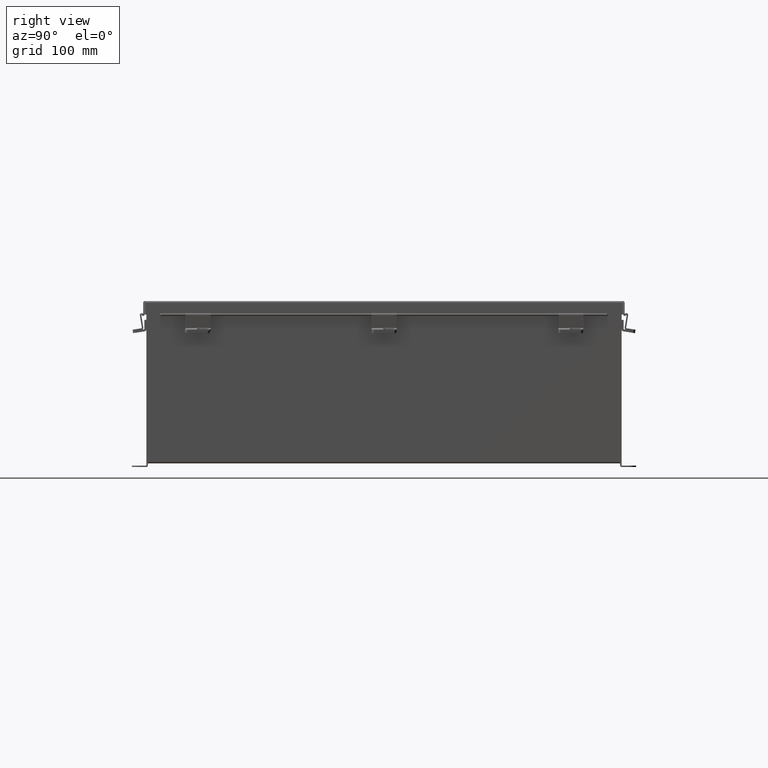
[diagram: clean part render]
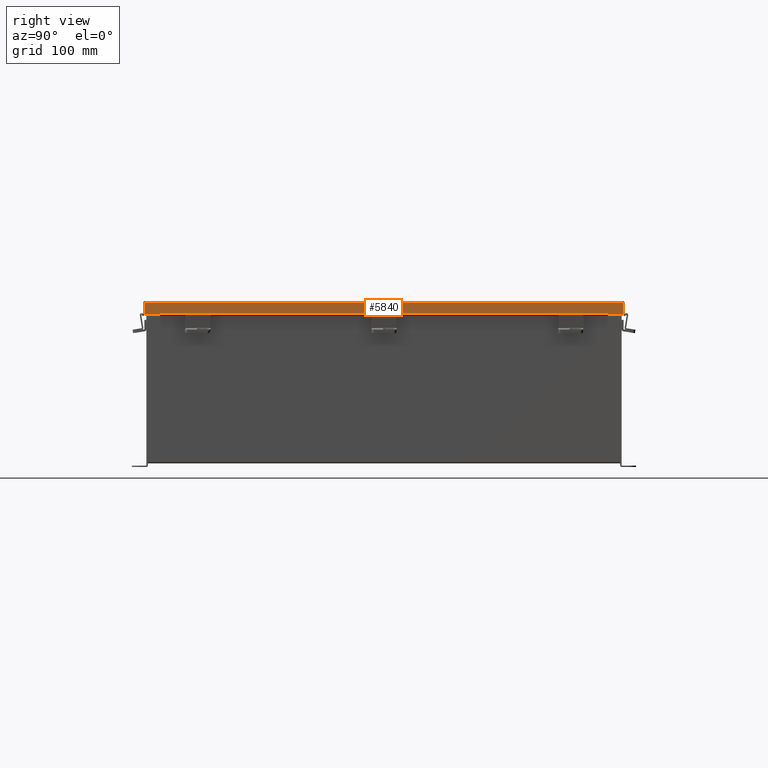
[diagram: same view with one face highlighted and labeled with its STEP entity id]
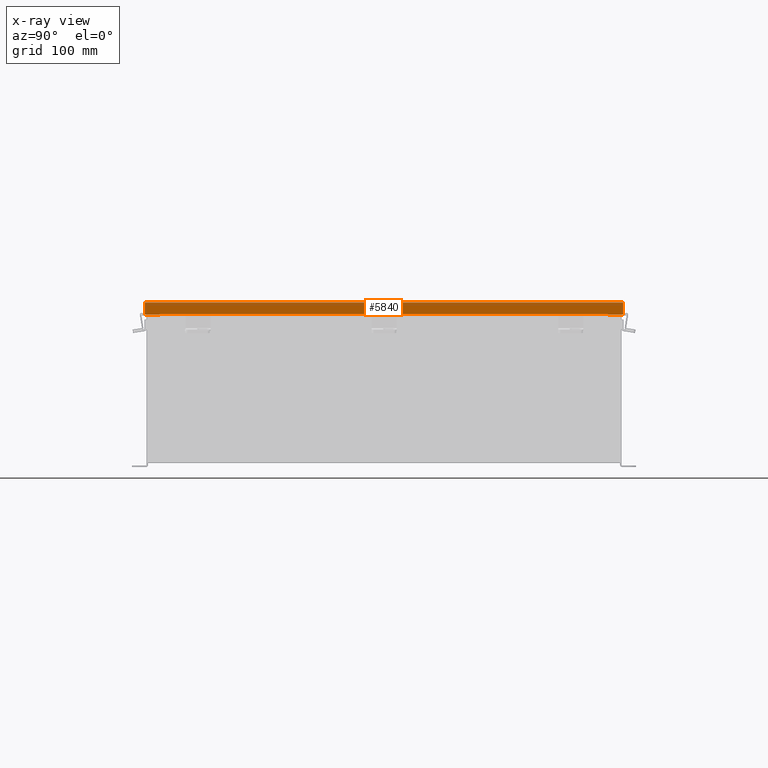
[diagram: x-ray of the same camera — body ghosted, the highlighted face saturated]
A machine part, right view. The second image highlights one B-rep face of the part: STEP entity #5840.
The next image is the same camera in x-ray: the body ghosted, the highlighted face saturated — about 0% of this face is hidden behind the body in this view.
In plain terms, the highlighted planar face has unit normal (-1, 0, -0).
Its self-contained STEP definition (entity closure, byte-faithful):
#46 = VECTOR ( 'NONE', #6319, 39.37007874015748100 ) ;
#151 = VERTEX_POINT ( 'NONE', #6353 ) ;
#294 = EDGE_CURVE ( 'NONE', #5400, #8834, #3645, .T. ) ;
#301 = LINE ( 'NONE', #1837, #46 ) ;
#397 = LINE ( 'NONE', #3883, #8557 ) ;
#731 = VECTOR ( 'NONE', #9449, 39.37007874015748100 ) ;
#835 = DIRECTION ( 'NONE',  ( 1.000000000000000000, 3.392644796219358600E-030, 3.569293475308537100E-015 ) ) ;
#966 = EDGE_CURVE ( 'NONE', #151, #7665, #397, .T. ) ;
#1053 = CARTESIAN_POINT ( 'NONE',  ( -12.15625000000003400, -12.07447893218813600, 0.6123000000000005100 ) ) ;
#1083 = EDGE_CURVE ( 'NONE', #8524, #1485, #4486, .T. ) ;
#1485 = VERTEX_POINT ( 'NONE', #5367 ) ;
#1837 = CARTESIAN_POINT ( 'NONE',  ( -12.15625000000003400, 11.32447893218813200, 0.6123000000000015100 ) ) ;
#1878 = EDGE_CURVE ( 'NONE', #8524, #9326, #2304, .T. ) ;
#1896 = CARTESIAN_POINT ( 'NONE',  ( -12.15625000000003000, -11.32447893218812100, 0.5967115427318782100 ) ) ;
#1908 = CARTESIAN_POINT ( 'NONE',  ( -12.15625000000003400, -11.32447893218813600, 0.6123000000000005100 ) ) ;
#2201 = ORIENTED_EDGE ( 'NONE', *, *, #3142, .F. ) ;
#2304 = LINE ( 'NONE', #9423, #6929 ) ;
#2435 = DIRECTION ( 'NONE',  ( 3.166671605124525800E-030, 1.000000000000000000, 1.853823127269377700E-029 ) ) ;
#2795 = FACE_OUTER_BOUND ( 'NONE', #4676, .T. ) ;
#3142 = EDGE_CURVE ( 'NONE', #8834, #4068, #6904, .T. ) ;
#3619 = CARTESIAN_POINT ( 'NONE',  ( -12.15625000000003000, 12.15624999999999800, 0.01300000000000010700 ) ) ;
#3645 = LINE ( 'NONE', #7457, #5731 ) ;
#3883 = CARTESIAN_POINT ( 'NONE',  ( -12.15625000000003200, -4.268512490100411300E-018, 0.6122999999999994000 ) ) ;
#4068 = VERTEX_POINT ( 'NONE', #1908 ) ;
#4331 = CARTESIAN_POINT ( 'NONE',  ( -12.15625000000003200, 0.0000000000000000000, -4.370956789862821100E-014 ) ) ;
#4486 = LINE ( 'NONE', #3619, #4494 ) ;
#4488 = CARTESIAN_POINT ( 'NONE',  ( -12.15625000000003400, -11.32447893218812100, 0.5967115427318782100 ) ) ;
#4494 = VECTOR ( 'NONE', #4645, 39.37007874015748100 ) ;
#4504 = CARTESIAN_POINT ( 'NONE',  ( -12.15625000000003000, -12.07447893218813600, 0.01300000000000010700 ) ) ;
#4645 = DIRECTION ( 'NONE',  ( 3.166671605124525800E-030, 1.000000000000000000, 1.853823127269377700E-029 ) ) ;
#4676 = EDGE_LOOP ( 'NONE', ( #9530, #8916, #8330, #7181, #6367, #8877, #2201, #9557 ) ) ;
#4692 = EDGE_CURVE ( 'NONE', #151, #5400, #301, .T. ) ;
#4775 = DIRECTION ( 'NONE',  ( -3.166671605124527300E-030, -1.000000000000000000, -1.853823127269378000E-029 ) ) ;
#5051 = EDGE_CURVE ( 'NONE', #9326, #4068, #9408, .T. ) ;
#5349 = VECTOR ( 'NONE', #2435, 39.37007874015748100 ) ;
#5367 = CARTESIAN_POINT ( 'NONE',  ( -12.15625000000003000, 12.07447893218813200, 0.01300000000000010700 ) ) ;
#5373 = LINE ( 'NONE', #6182, #7196 ) ;
#5400 = VERTEX_POINT ( 'NONE', #6384 ) ;
#5731 = VECTOR ( 'NONE', #4775, 39.37007874015748100 ) ;
#5840 = ADVANCED_FACE ( 'NONE', ( #2795 ), #6045, .F. ) ;
#6001 = DIRECTION ( 'NONE',  ( 3.569293475308537100E-015, -1.846427556282924000E-029, -1.000000000000000000 ) ) ;
#6045 = PLANE ( 'NONE',  #7693 ) ;
#6182 = CARTESIAN_POINT ( 'NONE',  ( -12.15625000000003000, 12.07447893218813200, 0.0000000000000000000 ) ) ;
#6319 = DIRECTION ( 'NONE',  ( 4.205955132072044700E-013, 1.401985044024007700E-013, -1.000000000000000000 ) ) ;
#6353 = CARTESIAN_POINT ( 'NONE',  ( -12.15625000000003400, 11.32447893218813200, 0.6123000000000015100 ) ) ;
#6367 = ORIENTED_EDGE ( 'NONE', *, *, #1878, .T. ) ;
#6384 = CARTESIAN_POINT ( 'NONE',  ( -12.15625000000003400, 11.32447893218813400, 0.5967115427318793200 ) ) ;
#6897 = DIRECTION ( 'NONE',  ( -3.569293475308537100E-015, 1.846427556282924300E-029, 1.000000000000000000 ) ) ;
#6904 = LINE ( 'NONE', #1896, #731 ) ;
#6929 = VECTOR ( 'NONE', #9211, 39.37007874015748100 ) ;
#7181 = ORIENTED_EDGE ( 'NONE', *, *, #1083, .F. ) ;
#7196 = VECTOR ( 'NONE', #6897, 39.37007874015748100 ) ;
#7457 = CARTESIAN_POINT ( 'NONE',  ( -12.15625000000003000, 11.32447893218812900, 0.5967115427318793200 ) ) ;
#7464 = CARTESIAN_POINT ( 'NONE',  ( -12.15625000000003200, -4.268512490100411300E-018, 0.6122999999999994000 ) ) ;
#7665 = VERTEX_POINT ( 'NONE', #9541 ) ;
#7693 = AXIS2_PLACEMENT_3D ( 'NONE', #4331, #835, #6001 ) ;
#8330 = ORIENTED_EDGE ( 'NONE', *, *, #9071, .F. ) ;
#8524 = VERTEX_POINT ( 'NONE', #4504 ) ;
#8557 = VECTOR ( 'NONE', #8845, 39.37007874015748100 ) ;
#8834 = VERTEX_POINT ( 'NONE', #4488 ) ;
#8845 = DIRECTION ( 'NONE',  ( 3.166671605124525800E-030, 1.000000000000000000, 1.853823127269377700E-029 ) ) ;
#8877 = ORIENTED_EDGE ( 'NONE', *, *, #5051, .T. ) ;
#8916 = ORIENTED_EDGE ( 'NONE', *, *, #966, .T. ) ;
#9071 = EDGE_CURVE ( 'NONE', #1485, #7665, #5373, .T. ) ;
#9211 = DIRECTION ( 'NONE',  ( -3.569293475308537100E-015, 1.846427556282924300E-029, 1.000000000000000000 ) ) ;
#9326 = VERTEX_POINT ( 'NONE', #1053 ) ;
#9408 = LINE ( 'NONE', #7464, #5349 ) ;
#9423 = CARTESIAN_POINT ( 'NONE',  ( -12.15625000000003000, -12.07447893218813600, -4.370956789862821100E-014 ) ) ;
#9449 = DIRECTION ( 'NONE',  ( -2.803970088047903700E-013, -9.813895308167636000E-013, 1.000000000000000000 ) ) ;
#9530 = ORIENTED_EDGE ( 'NONE', *, *, #4692, .F. ) ;
#9541 = CARTESIAN_POINT ( 'NONE',  ( -12.15625000000003400, 12.07447893218813200, 0.6123000000000005100 ) ) ;
#9557 = ORIENTED_EDGE ( 'NONE', *, *, #294, .F. ) ;